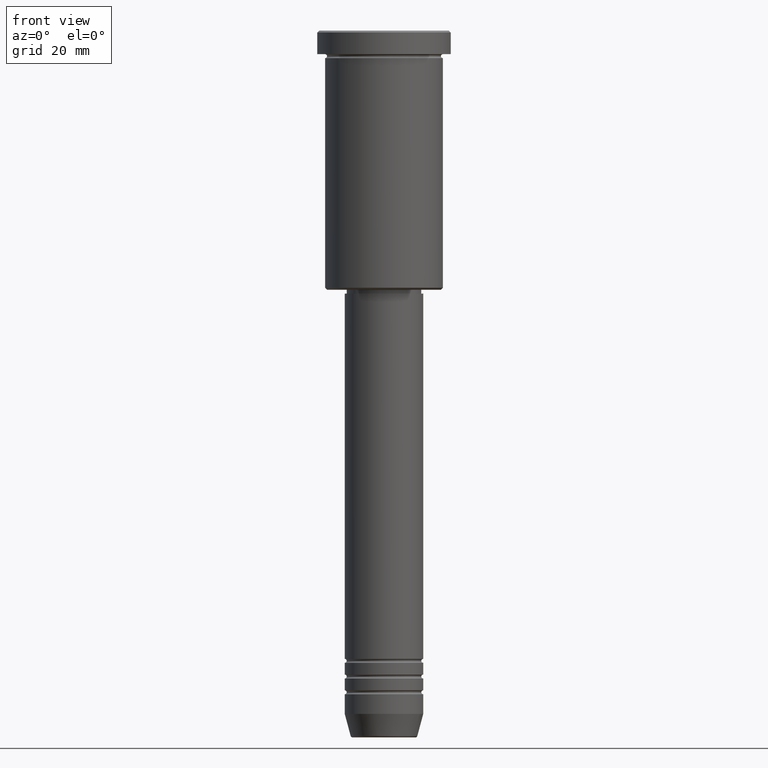
[diagram: clean part render]
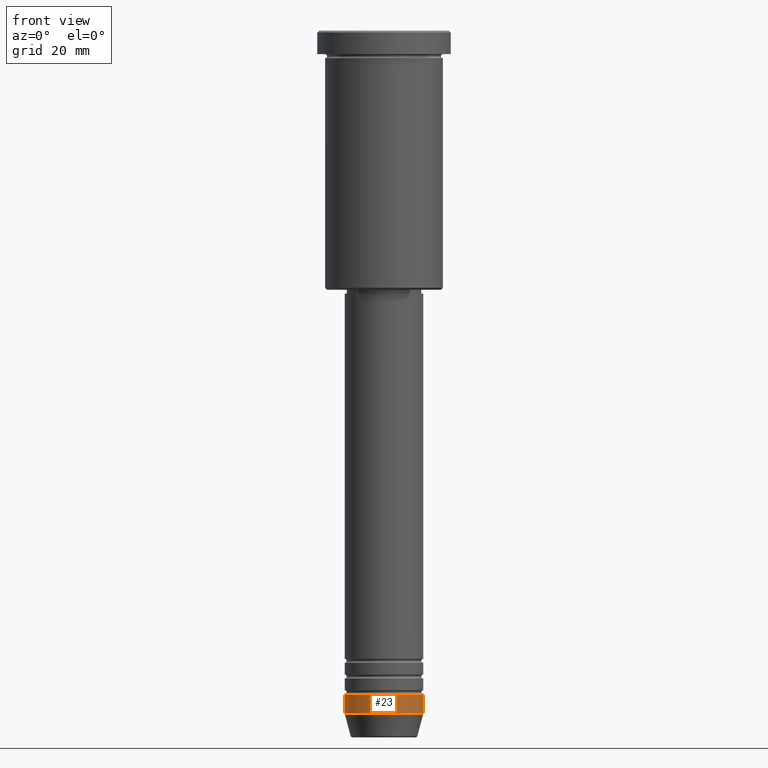
[diagram: same view with one face highlighted and labeled with its STEP entity id]
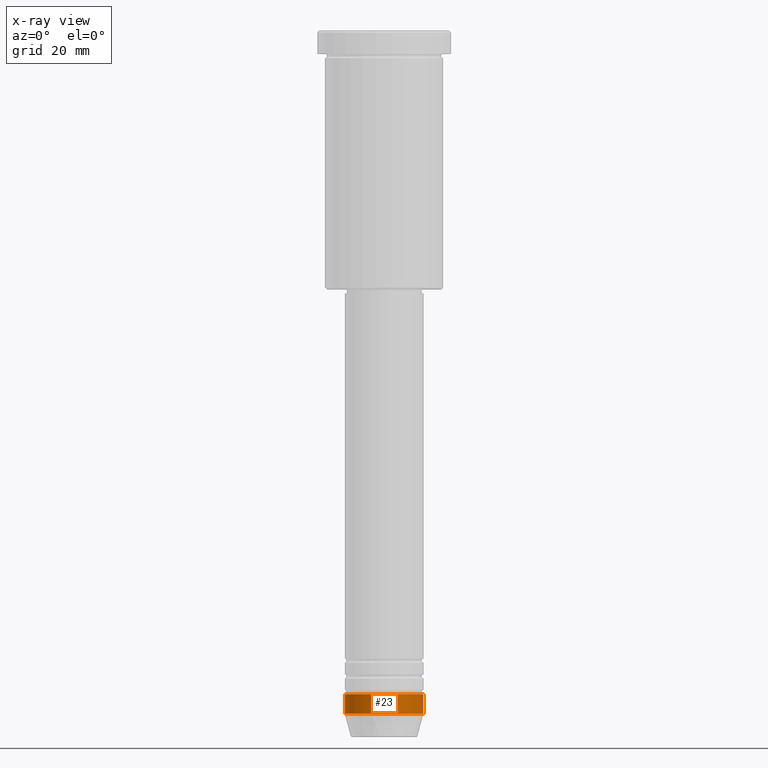
[diagram: x-ray of the same camera — body ghosted, the highlighted face saturated]
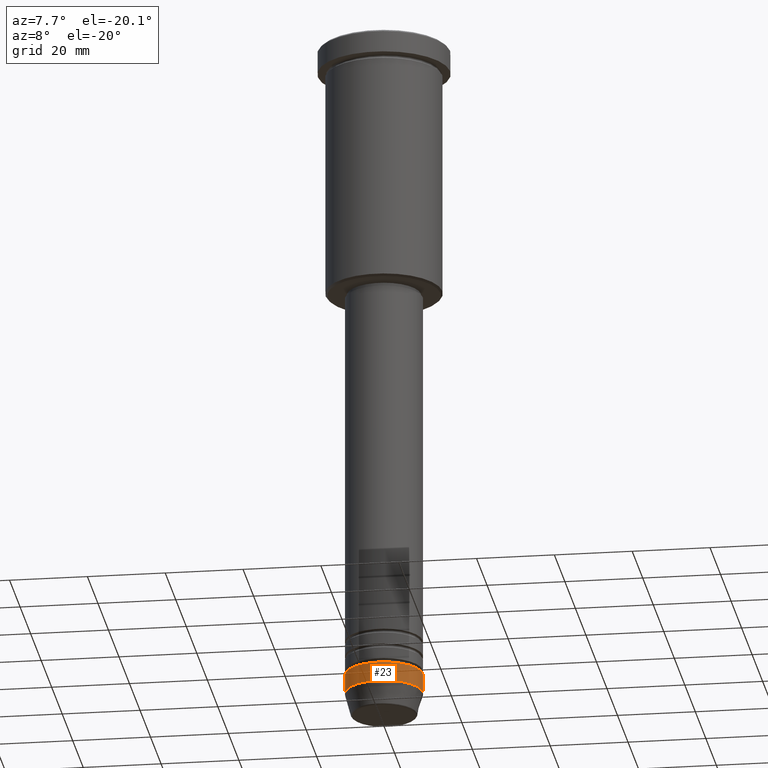
[diagram: same view with one face highlighted and labeled with its STEP entity id]
A machine part, front view. The second image highlights one B-rep face of the part: STEP entity #23.
The next image is the same camera in x-ray: the body ghosted, the highlighted face saturated — about 0% of this face is hidden behind the body in this view.
A second angle (auxiliary view) of the same face is appended — the face is thin or edge-on in the first view.
In plain terms, the highlighted cylindrical surface (partial cylindrical patch) has radius 10 mm, axis along (-0, -0, 1).
Its self-contained STEP definition (entity closure, byte-faithful):
#4 = EDGE_LOOP ( 'NONE', ( #262, #451, #697, #679 ) ) ;
#23 = ADVANCED_FACE ( 'NONE', ( #558 ), #452, .T. ) ;
#33 = VERTEX_POINT ( 'NONE', #1024 ) ;
#186 = CARTESIAN_POINT ( 'NONE',  ( 0.000000000000000000, 0.000000000000000000, -174.0000000000000284 ) ) ;
#196 = CARTESIAN_POINT ( 'NONE',  ( 10.00000000000000000, 0.000000000000000000, -169.0000000000000000 ) ) ;
#205 = DIRECTION ( 'NONE',  ( -0.000000000000000000, -0.000000000000000000, 1.000000000000000000 ) ) ;
#221 = DIRECTION ( 'NONE',  ( 1.000000000000000000, 0.000000000000000000, 0.000000000000000000 ) ) ;
#262 = ORIENTED_EDGE ( 'NONE', *, *, #520, .F. ) ;
#276 = LINE ( 'NONE', #716, #1168 ) ;
#393 = AXIS2_PLACEMENT_3D ( 'NONE', #730, #931, #446 ) ;
#439 = VERTEX_POINT ( 'NONE', #196 ) ;
#446 = DIRECTION ( 'NONE',  ( 1.000000000000000000, 0.000000000000000000, 0.000000000000000000 ) ) ;
#451 = ORIENTED_EDGE ( 'NONE', *, *, #893, .T. ) ;
#452 = CYLINDRICAL_SURFACE ( 'NONE', #393, 10.00000000000000178 ) ;
#488 = CARTESIAN_POINT ( 'NONE',  ( 0.000000000000000000, 0.000000000000000000, -169.0000000000000000 ) ) ;
#498 = AXIS2_PLACEMENT_3D ( 'NONE', #186, #1174, #1179 ) ;
#520 = EDGE_CURVE ( 'NONE', #878, #1019, #923, .T. ) ;
#544 = CARTESIAN_POINT ( 'NONE',  ( -10.00000000000000000, 1.224646799147353256E-15, -169.0000000000000000 ) ) ;
#556 = DIRECTION ( 'NONE',  ( -0.000000000000000000, -0.000000000000000000, 1.000000000000000000 ) ) ;
#558 = FACE_OUTER_BOUND ( 'NONE', #4, .T. ) ;
#648 = EDGE_CURVE ( 'NONE', #1019, #439, #722, .T. ) ;
#679 = ORIENTED_EDGE ( 'NONE', *, *, #648, .F. ) ;
#697 = ORIENTED_EDGE ( 'NONE', *, *, #967, .T. ) ;
#716 = CARTESIAN_POINT ( 'NONE',  ( 10.00000000000000178, 0.000000000000000000, 0.000000000000000000 ) ) ;
#719 = DIRECTION ( 'NONE',  ( -0.000000000000000000, -0.000000000000000000, 1.000000000000000000 ) ) ;
#722 = CIRCLE ( 'NONE', #1147, 10.00000000000000000 ) ;
#730 = CARTESIAN_POINT ( 'NONE',  ( 0.000000000000000000, 0.000000000000000000, 0.000000000000000000 ) ) ;
#761 = CIRCLE ( 'NONE', #498, 10.00000000000000178 ) ;
#806 = CARTESIAN_POINT ( 'NONE',  ( -10.00000000000000178, 1.224646799147353454E-15, -174.0000000000000284 ) ) ;
#878 = VERTEX_POINT ( 'NONE', #806 ) ;
#893 = EDGE_CURVE ( 'NONE', #878, #33, #761, .T. ) ;
#923 = LINE ( 'NONE', #933, #1031 ) ;
#931 = DIRECTION ( 'NONE',  ( -0.000000000000000000, -0.000000000000000000, 1.000000000000000000 ) ) ;
#933 = CARTESIAN_POINT ( 'NONE',  ( -10.00000000000000178, 1.224646799147353454E-15, 0.000000000000000000 ) ) ;
#967 = EDGE_CURVE ( 'NONE', #33, #439, #276, .T. ) ;
#1019 = VERTEX_POINT ( 'NONE', #544 ) ;
#1024 = CARTESIAN_POINT ( 'NONE',  ( 10.00000000000000178, 0.000000000000000000, -174.0000000000000284 ) ) ;
#1031 = VECTOR ( 'NONE', #556, 1000.000000000000000 ) ;
#1147 = AXIS2_PLACEMENT_3D ( 'NONE', #488, #205, #221 ) ;
#1168 = VECTOR ( 'NONE', #719, 1000.000000000000000 ) ;
#1174 = DIRECTION ( 'NONE',  ( -0.000000000000000000, -0.000000000000000000, 1.000000000000000000 ) ) ;
#1179 = DIRECTION ( 'NONE',  ( 1.000000000000000000, 0.000000000000000000, 0.000000000000000000 ) ) ;